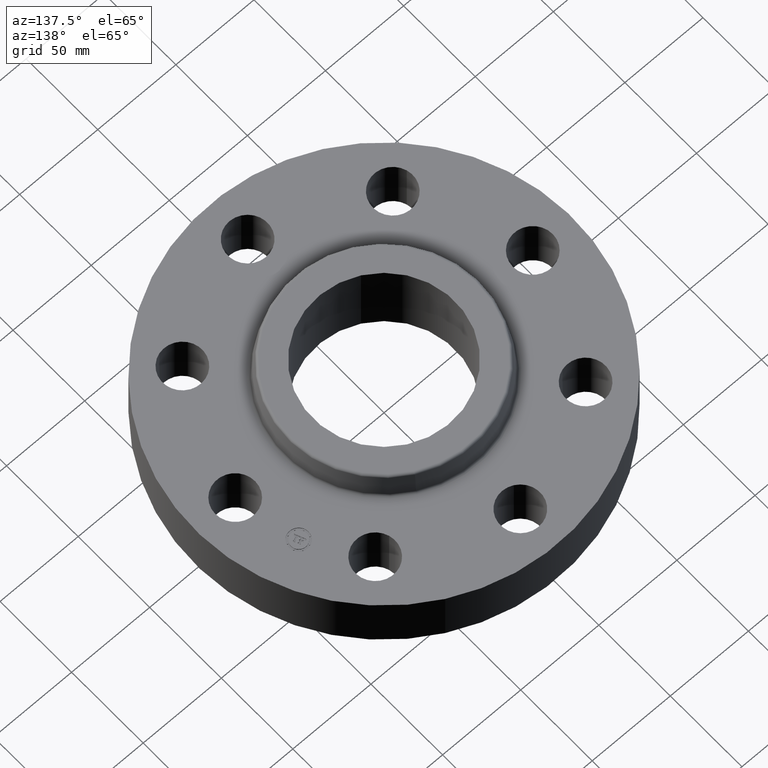
[diagram: clean part render]
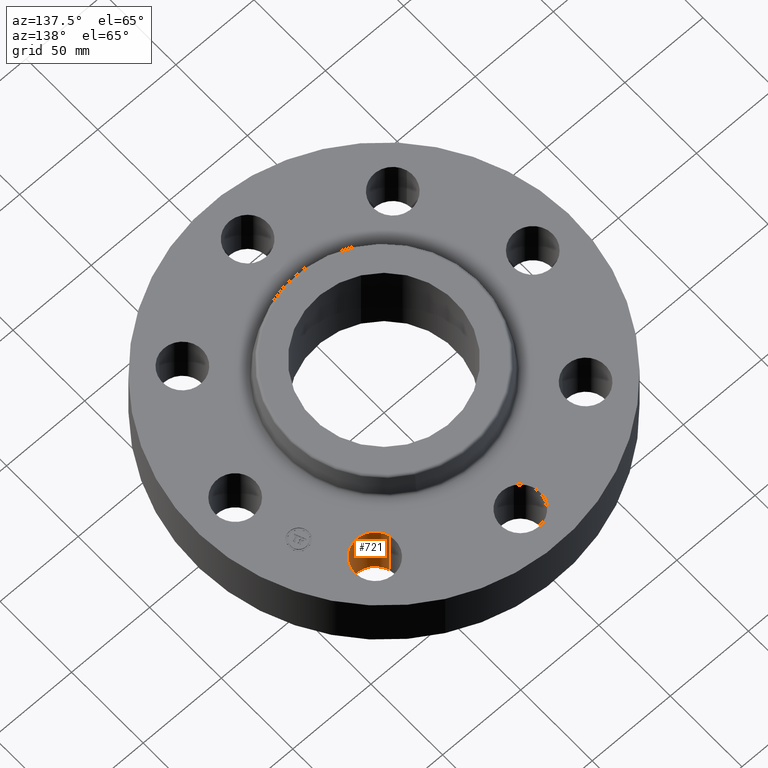
[diagram: same view with one face highlighted and labeled with its STEP entity id]
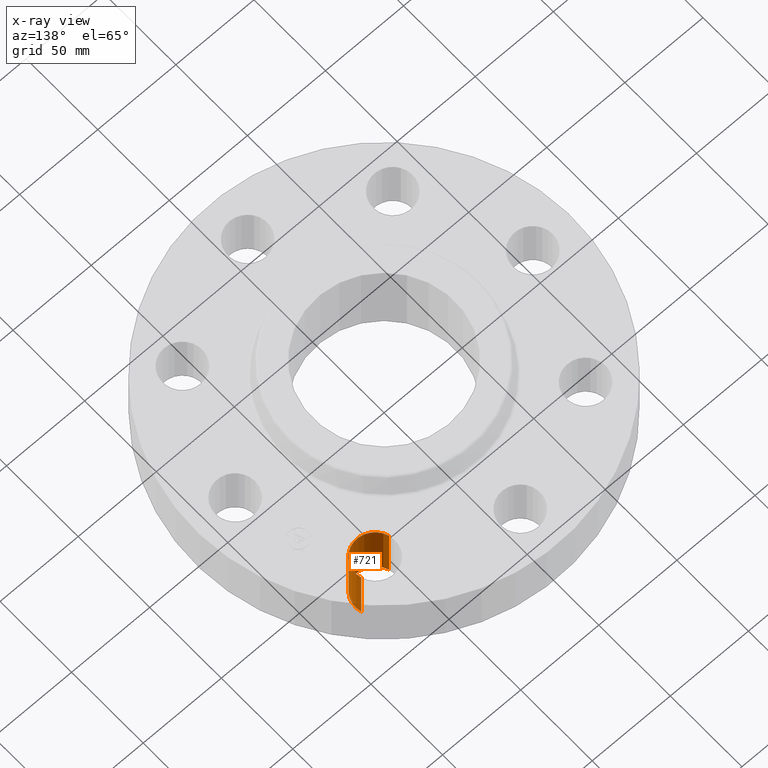
[diagram: x-ray of the same camera — body ghosted, the highlighted face saturated]
A machine part, auxiliary view. The second image highlights one B-rep face of the part: STEP entity #721.
The next image is the same camera in x-ray: the body ghosted, the highlighted face saturated — about 1% of this face is hidden behind the body in this view.
In plain terms, the highlighted cylindrical surface (edge-blend (fillet) strip) has radius 12.7 mm, axis along (0, 0, -1).
Its self-contained STEP definition (entity closure, byte-faithful):
#499=AXIS2_PLACEMENT_3D('Circle Axis2P3D',#497,#498,$) ;
#682=AXIS2_PLACEMENT_3D('Cylinder Axis2P3D',#679,#680,#681) ;
#712=AXIS2_PLACEMENT_3D('Circle Axis2P3D',#710,#711,$) ;
#492=CARTESIAN_POINT('Vertex',(2.17187561447,2.51088066389,0.)) ;
#494=CARTESIAN_POINT('Vertex',(3.13142524445,2.79242019503,0.)) ;
#497=CARTESIAN_POINT('Axis2P3D Location',(2.65165042946,2.65165042946,0.)) ;
#679=CARTESIAN_POINT('Axis2P3D Location',(2.65165042946,2.65165042946,1.49606299213)) ;
#684=CARTESIAN_POINT('Line Origine',(2.17187561447,2.51088066389,0.750000000003)) ;
#688=CARTESIAN_POINT('Vertex',(2.17187561447,2.51088066389,1.50000000001)) ;
#691=CARTESIAN_POINT('Line Origine',(3.13142524445,2.79242019503,0.750000000003)) ;
#695=CARTESIAN_POINT('Vertex',(3.13142524445,2.79242019503,1.50000000001)) ;
#710=CARTESIAN_POINT('Axis2P3D Location',(2.65165042946,2.65165042946,1.50000000001)) ;
#498=DIRECTION('Axis2P3D Direction',(0.,0.,-0.0393700787402)) ;
#680=DIRECTION('Axis2P3D Direction',(0.,0.,-0.0393700787402)) ;
#681=DIRECTION('Axis2P3D XDirection',(0.0377775444876,0.0110842335096,0.)) ;
#685=DIRECTION('Vector Direction',(0.,0.,-0.0393700787402)) ;
#692=DIRECTION('Vector Direction',(0.,0.,-0.0393700787402)) ;
#711=DIRECTION('Axis2P3D Direction',(0.,0.,-0.0393700787402)) ;
#686=VECTOR('Line Direction',#685,0.0393700787402) ;
#693=VECTOR('Line Direction',#692,0.0393700787402) ;
#716=ORIENTED_EDGE('',*,*,#697,.F.) ;
#717=ORIENTED_EDGE('',*,*,#501,.T.) ;
#718=ORIENTED_EDGE('',*,*,#690,.T.) ;
#719=ORIENTED_EDGE('',*,*,#714,.F.) ;
#721=ADVANCED_FACE('PartBody',(#720),#683,.F.) ;
#500=CIRCLE('generated circle',#499,0.500000000002) ;
#713=CIRCLE('generated circle',#712,0.500000000002) ;
#683=CYLINDRICAL_SURFACE('generated cylinder',#682,0.500000000002) ;
#501=EDGE_CURVE('',#495,#493,#500,.T.) ;
#690=EDGE_CURVE('',#493,#689,#687,.F.) ;
#697=EDGE_CURVE('',#495,#696,#694,.F.) ;
#714=EDGE_CURVE('',#696,#689,#713,.T.) ;
#715=EDGE_LOOP('',(#716,#717,#718,#719)) ;
#720=FACE_OUTER_BOUND('',#715,.T.) ;
#687=LINE('Line',#684,#686) ;
#694=LINE('Line',#691,#693) ;
#493=VERTEX_POINT('',#492) ;
#495=VERTEX_POINT('',#494) ;
#689=VERTEX_POINT('',#688) ;
#696=VERTEX_POINT('',#695) ;